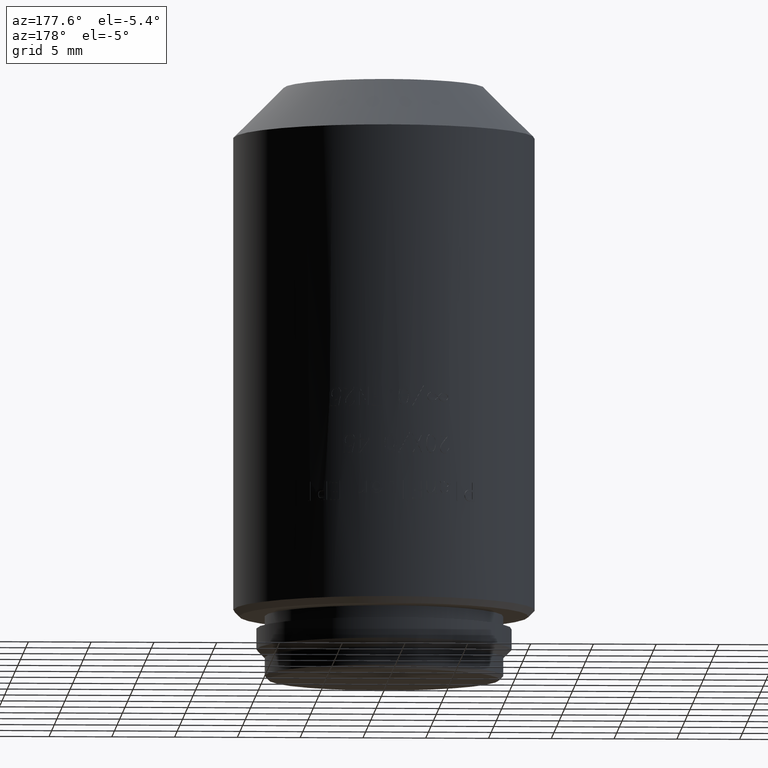
[diagram: clean part render]
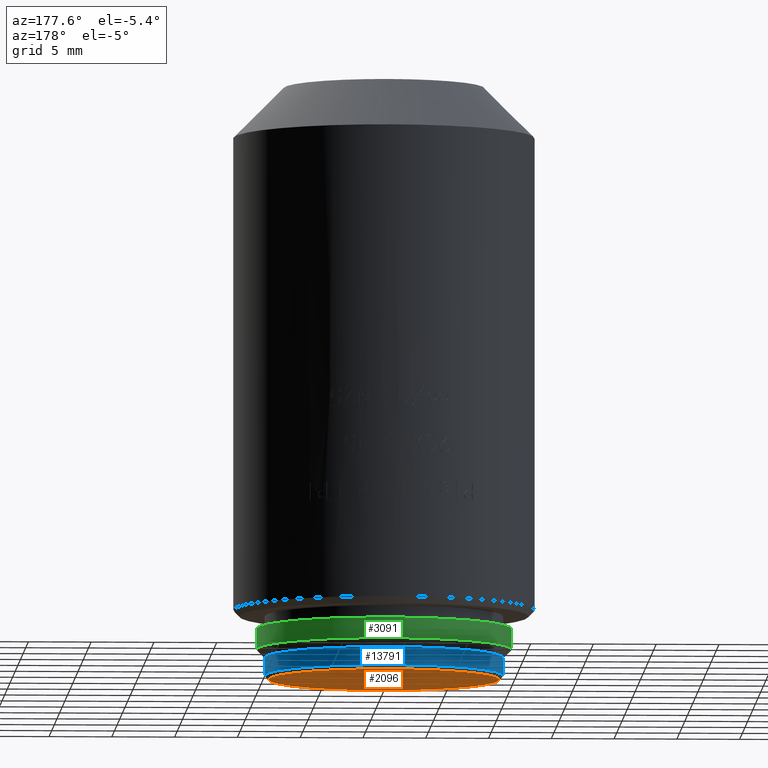
[diagram: same view with three faces highlighted in distinct colors, each labeled with its STEP entity id]
A machine part, auxiliary view with three faces highlighted in distinct colors.
Their STEP definitions:

[orange] entity #2096 — the highlighted planar face has unit normal (0, 0, 1).
#1240 = DIRECTION ( 'NONE',  ( 1.000000000000000000, 0.000000000000000000, 0.000000000000000000 ) ) ;
#1911 = CIRCLE ( 'NONE', #4536, 9.199999999999999289 ) ;
#2096 = ADVANCED_FACE ( 'NONE', ( #17099 ), #18619, .F. ) ;
#3077 = DIRECTION ( 'NONE',  ( 1.000000000000000000, 0.000000000000000000, 0.000000000000000000 ) ) ;
#3089 = EDGE_CURVE ( 'NONE', #9897, #15906, #12679, .T. ) ;
#3653 = EDGE_CURVE ( 'NONE', #15906, #9897, #1911, .T. ) ;
#4536 = AXIS2_PLACEMENT_3D ( 'NONE', #18859, #12009, #3077 ) ;
#5074 = CARTESIAN_POINT ( 'NONE',  ( 0.000000000000000000, 0.000000000000000000, 0.000000000000000000 ) ) ;
#6008 = AXIS2_PLACEMENT_3D ( 'NONE', #5074, #18881, #1240 ) ;
#8060 = DIRECTION ( 'NONE',  ( 0.000000000000000000, 0.000000000000000000, 1.000000000000000000 ) ) ;
#9810 = DIRECTION ( 'NONE',  ( 1.000000000000000000, 0.000000000000000000, 0.000000000000000000 ) ) ;
#9897 = VERTEX_POINT ( 'NONE', #15954 ) ;
#10735 = ORIENTED_EDGE ( 'NONE', *, *, #3089, .T. ) ;
#11211 = AXIS2_PLACEMENT_3D ( 'NONE', #20568, #8060, #9810 ) ;
#11812 = EDGE_LOOP ( 'NONE', ( #20640, #10735 ) ) ;
#12009 = DIRECTION ( 'NONE',  ( 0.000000000000000000, 0.000000000000000000, -1.000000000000000000 ) ) ;
#12679 = CIRCLE ( 'NONE', #6008, 9.199999999999999289 ) ;
#15906 = VERTEX_POINT ( 'NONE', #16948 ) ;
#15954 = CARTESIAN_POINT ( 'NONE',  ( -9.199999999999999289, 1.145044757202775252E-15, 0.000000000000000000 ) ) ;
#16948 = CARTESIAN_POINT ( 'NONE',  ( 9.199999999999999289, 0.000000000000000000, 0.000000000000000000 ) ) ;
#17099 = FACE_OUTER_BOUND ( 'NONE', #11812, .T. ) ;
#18619 = PLANE ( 'NONE',  #11211 ) ;
#18859 = CARTESIAN_POINT ( 'NONE',  ( 0.000000000000000000, 0.000000000000000000, 0.000000000000000000 ) ) ;
#18881 = DIRECTION ( 'NONE',  ( 0.000000000000000000, 0.000000000000000000, -1.000000000000000000 ) ) ;
#20568 = CARTESIAN_POINT ( 'NONE',  ( 0.000000000000000000, 0.000000000000000000, 0.000000000000000000 ) ) ;
#20640 = ORIENTED_EDGE ( 'NONE', *, *, #3653, .T. ) ;

[blue] entity #13791 — the highlighted cylindrical surface (partial cylindrical patch) has radius 9.5 mm, axis along (0, 0, -1).
#280 = CARTESIAN_POINT ( 'NONE',  ( 9.500000000000000000, 1.163414459189985485E-15, 1.750000000000000000 ) ) ;
#352 = FACE_OUTER_BOUND ( 'NONE', #12440, .T. ) ;
#401 = AXIS2_PLACEMENT_3D ( 'NONE', #15405, #15636, #13664 ) ;
#1080 = VECTOR ( 'NONE', #1344, 1000.000000000000000 ) ;
#1344 = DIRECTION ( 'NONE',  ( 0.000000000000000000, 0.000000000000000000, -1.000000000000000000 ) ) ;
#2555 = DIRECTION ( 'NONE',  ( 0.000000000000000000, 0.000000000000000000, -1.000000000000000000 ) ) ;
#2565 = VERTEX_POINT ( 'NONE', #3503 ) ;
#3503 = CARTESIAN_POINT ( 'NONE',  ( 9.500000000000000000, 0.000000000000000000, 0.2999999999999999889 ) ) ;
#3953 = CARTESIAN_POINT ( 'NONE',  ( 0.000000000000000000, 0.000000000000000000, 1.750000000000000000 ) ) ;
#4732 = CARTESIAN_POINT ( 'NONE',  ( 9.500000000000000000, 1.163414459189985485E-15, 1.750000000000000000 ) ) ;
#5694 = CARTESIAN_POINT ( 'NONE',  ( -9.500000000000000000, 0.000000000000000000, 1.750000000000000000 ) ) ;
#6155 = DIRECTION ( 'NONE',  ( 0.000000000000000000, 0.000000000000000000, -1.000000000000000000 ) ) ;
#6161 = AXIS2_PLACEMENT_3D ( 'NONE', #3953, #2555, #21809 ) ;
#6500 = VERTEX_POINT ( 'NONE', #280 ) ;
#7071 = CIRCLE ( 'NONE', #401, 9.500000000000000000 ) ;
#10888 = LINE ( 'NONE', #18391, #17812 ) ;
#11020 = ORIENTED_EDGE ( 'NONE', *, *, #16858, .F. ) ;
#11530 = CIRCLE ( 'NONE', #16709, 9.500000000000000000 ) ;
#12061 = ORIENTED_EDGE ( 'NONE', *, *, #19888, .T. ) ;
#12406 = ORIENTED_EDGE ( 'NONE', *, *, #16757, .T. ) ;
#12440 = EDGE_LOOP ( 'NONE', ( #12406, #12061, #22299, #11020 ) ) ;
#13231 = DIRECTION ( 'NONE',  ( -1.000000000000000000, 0.000000000000000000, 0.000000000000000000 ) ) ;
#13413 = EDGE_CURVE ( 'NONE', #2565, #21939, #7071, .T. ) ;
#13664 = DIRECTION ( 'NONE',  ( 1.000000000000000000, 0.000000000000000000, 0.000000000000000000 ) ) ;
#13791 = ADVANCED_FACE ( 'NONE', ( #352 ), #14858, .T. ) ;
#14365 = DIRECTION ( 'NONE',  ( 0.000000000000000000, 0.000000000000000000, -1.000000000000000000 ) ) ;
#14858 = CYLINDRICAL_SURFACE ( 'NONE', #6161, 9.500000000000000000 ) ;
#15289 = LINE ( 'NONE', #4732, #1080 ) ;
#15405 = CARTESIAN_POINT ( 'NONE',  ( 0.000000000000000000, 0.000000000000000000, 0.2999999999999999889 ) ) ;
#15636 = DIRECTION ( 'NONE',  ( 0.000000000000000000, 0.000000000000000000, 1.000000000000000000 ) ) ;
#16709 = AXIS2_PLACEMENT_3D ( 'NONE', #22036, #6155, #13231 ) ;
#16757 = EDGE_CURVE ( 'NONE', #22213, #6500, #11530, .T. ) ;
#16858 = EDGE_CURVE ( 'NONE', #22213, #21939, #10888, .T. ) ;
#17812 = VECTOR ( 'NONE', #14365, 1000.000000000000000 ) ;
#18391 = CARTESIAN_POINT ( 'NONE',  ( -9.500000000000000000, 0.000000000000000000, 1.750000000000000000 ) ) ;
#19888 = EDGE_CURVE ( 'NONE', #6500, #2565, #15289, .T. ) ;
#21809 = DIRECTION ( 'NONE',  ( -1.000000000000000000, 0.000000000000000000, 0.000000000000000000 ) ) ;
#21939 = VERTEX_POINT ( 'NONE', #22731 ) ;
#22036 = CARTESIAN_POINT ( 'NONE',  ( 0.000000000000000000, 0.000000000000000000, 1.750000000000000000 ) ) ;
#22213 = VERTEX_POINT ( 'NONE', #5694 ) ;
#22299 = ORIENTED_EDGE ( 'NONE', *, *, #13413, .T. ) ;
#22731 = CARTESIAN_POINT ( 'NONE',  ( -9.500000000000000000, 1.163414459189985485E-15, 0.2999999999999999889 ) ) ;

[green] entity #3091 — the highlighted cylindrical surface (partial cylindrical patch) has radius 10.16 mm, axis along (0, 0, -1).
#429 = VECTOR ( 'NONE', #3146, 1000.000000000000000 ) ;
#1069 = CARTESIAN_POINT ( 'NONE',  ( -10.16000000000000014, 0.000000000000000000, 5.049999999999999822 ) ) ;
#1813 = CIRCLE ( 'NONE', #14800, 10.16000000000000014 ) ;
#2539 = CARTESIAN_POINT ( 'NONE',  ( 10.16000000000000014, 0.000000000000000000, 2.399999999999999911 ) ) ;
#3091 = ADVANCED_FACE ( 'NONE', ( #15510 ), #19098, .T. ) ;
#3146 = DIRECTION ( 'NONE',  ( 0.000000000000000000, 0.000000000000000000, -1.000000000000000000 ) ) ;
#4395 = EDGE_CURVE ( 'NONE', #12454, #8693, #22632, .T. ) ;
#4491 = CIRCLE ( 'NONE', #17083, 10.16000000000000014 ) ;
#4712 = DIRECTION ( 'NONE',  ( 0.000000000000000000, 0.000000000000000000, 1.000000000000000000 ) ) ;
#5221 = ORIENTED_EDGE ( 'NONE', *, *, #4395, .F. ) ;
#6927 = CARTESIAN_POINT ( 'NONE',  ( -10.16000000000000014, 1.244241147933710864E-15, 2.399999999999999911 ) ) ;
#7758 = DIRECTION ( 'NONE',  ( 0.000000000000000000, 0.000000000000000000, 1.000000000000000000 ) ) ;
#7880 = DIRECTION ( 'NONE',  ( -1.000000000000000000, 0.000000000000000000, 0.000000000000000000 ) ) ;
#8070 = DIRECTION ( 'NONE',  ( 0.000000000000000000, 0.000000000000000000, -1.000000000000000000 ) ) ;
#8298 = DIRECTION ( 'NONE',  ( -1.000000000000000000, 0.000000000000000000, 0.000000000000000000 ) ) ;
#8693 = VERTEX_POINT ( 'NONE', #6927 ) ;
#8958 = AXIS2_PLACEMENT_3D ( 'NONE', #10296, #17358, #13996 ) ;
#9996 = CARTESIAN_POINT ( 'NONE',  ( 10.16000000000000014, 1.244241147933710864E-15, 4.049999999999999822 ) ) ;
#10296 = CARTESIAN_POINT ( 'NONE',  ( 0.000000000000000000, 0.000000000000000000, 5.049999999999999822 ) ) ;
#12454 = VERTEX_POINT ( 'NONE', #14029 ) ;
#13218 = VERTEX_POINT ( 'NONE', #2539 ) ;
#13262 = EDGE_LOOP ( 'NONE', ( #21441, #15886, #22412, #5221 ) ) ;
#13329 = EDGE_CURVE ( 'NONE', #13218, #8693, #4491, .T. ) ;
#13996 = DIRECTION ( 'NONE',  ( -1.000000000000000000, 0.000000000000000000, 0.000000000000000000 ) ) ;
#14029 = CARTESIAN_POINT ( 'NONE',  ( -10.16000000000000014, 0.000000000000000000, 4.049999999999999822 ) ) ;
#14800 = AXIS2_PLACEMENT_3D ( 'NONE', #17117, #4712, #8298 ) ;
#15510 = FACE_OUTER_BOUND ( 'NONE', #13262, .T. ) ;
#15886 = ORIENTED_EDGE ( 'NONE', *, *, #19089, .T. ) ;
#16039 = VERTEX_POINT ( 'NONE', #9996 ) ;
#17083 = AXIS2_PLACEMENT_3D ( 'NONE', #22258, #7758, #7880 ) ;
#17117 = CARTESIAN_POINT ( 'NONE',  ( 0.000000000000000000, 0.000000000000000000, 4.049999999999999822 ) ) ;
#17358 = DIRECTION ( 'NONE',  ( 0.000000000000000000, 0.000000000000000000, -1.000000000000000000 ) ) ;
#19089 = EDGE_CURVE ( 'NONE', #16039, #13218, #22332, .T. ) ;
#19098 = CYLINDRICAL_SURFACE ( 'NONE', #8958, 10.16000000000000014 ) ;
#19275 = VECTOR ( 'NONE', #8070, 1000.000000000000000 ) ;
#20334 = EDGE_CURVE ( 'NONE', #16039, #12454, #1813, .T. ) ;
#20471 = CARTESIAN_POINT ( 'NONE',  ( 10.16000000000000014, 1.244241147933710864E-15, 5.049999999999999822 ) ) ;
#21441 = ORIENTED_EDGE ( 'NONE', *, *, #20334, .F. ) ;
#22258 = CARTESIAN_POINT ( 'NONE',  ( 0.000000000000000000, 0.000000000000000000, 2.399999999999999911 ) ) ;
#22332 = LINE ( 'NONE', #20471, #19275 ) ;
#22412 = ORIENTED_EDGE ( 'NONE', *, *, #13329, .T. ) ;
#22632 = LINE ( 'NONE', #1069, #429 ) ;